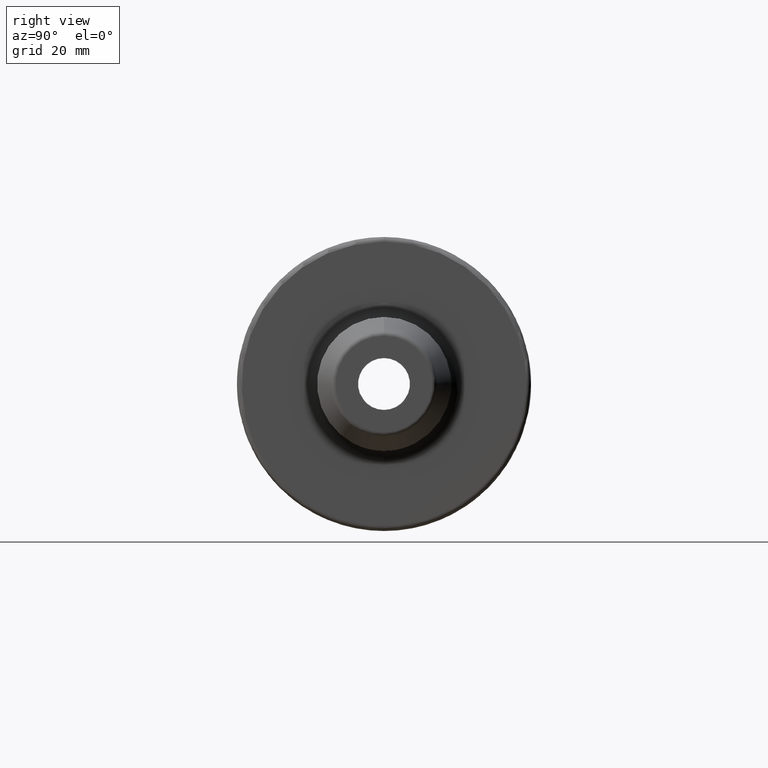
[diagram: clean part render]
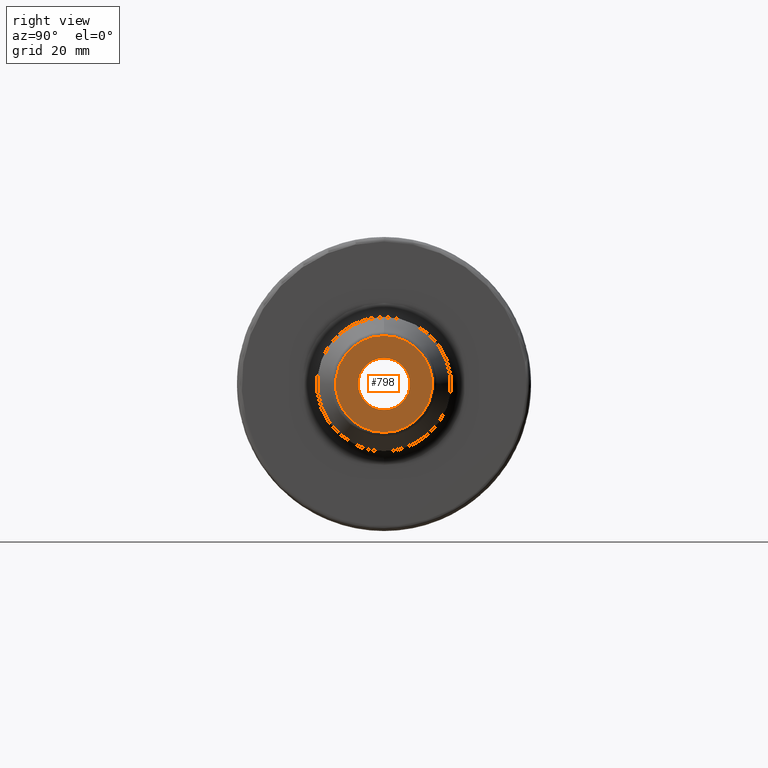
[diagram: same view with one face highlighted and labeled with its STEP entity id]
A machine part, right view. The second image highlights one B-rep face of the part: STEP entity #798.
In plain terms, the highlighted planar face has unit normal (1, 0, 0).
Its self-contained STEP definition (entity closure, byte-faithful):
#19=PLANE('',#875);
#53=FACE_BOUND('',#184,.T.);
#62=CIRCLE('',#871,10.3629297391925);
#65=CIRCLE('',#876,5.55625);
#133=FACE_OUTER_BOUND('',#183,.T.);
#183=EDGE_LOOP('',(#569));
#184=EDGE_LOOP('',(#570));
#351=VERTEX_POINT('',#1442);
#353=VERTEX_POINT('',#1450);
#433=EDGE_CURVE('',#351,#351,#62,.T.);
#437=EDGE_CURVE('',#353,#353,#65,.T.);
#569=ORIENTED_EDGE('',*,*,#433,.F.);
#570=ORIENTED_EDGE('',*,*,#437,.T.);
#798=ADVANCED_FACE('',(#133,#53),#19,.T.);
#871=AXIS2_PLACEMENT_3D('',#1443,#984,#985);
#875=AXIS2_PLACEMENT_3D('',#1449,#993,#994);
#876=AXIS2_PLACEMENT_3D('',#1451,#995,#996);
#984=DIRECTION('center_axis',(-1.,0.,0.));
#985=DIRECTION('ref_axis',(0.,1.22464679914735E-16,1.));
#993=DIRECTION('center_axis',(1.,0.,0.));
#994=DIRECTION('ref_axis',(0.,0.,-1.));
#995=DIRECTION('center_axis',(-1.,0.,0.));
#996=DIRECTION('ref_axis',(0.,0.,-1.));
#1442=CARTESIAN_POINT('',(63.5,-1.2690928734891E-15,10.3629297391925));
#1443=CARTESIAN_POINT('Origin',(63.5,0.,0.));
#1449=CARTESIAN_POINT('Origin',(63.5,0.,6.65507257040218E-16));
#1450=CARTESIAN_POINT('',(63.5,-6.80444377776248E-16,5.55625));
#1451=CARTESIAN_POINT('Origin',(63.5,0.,0.));